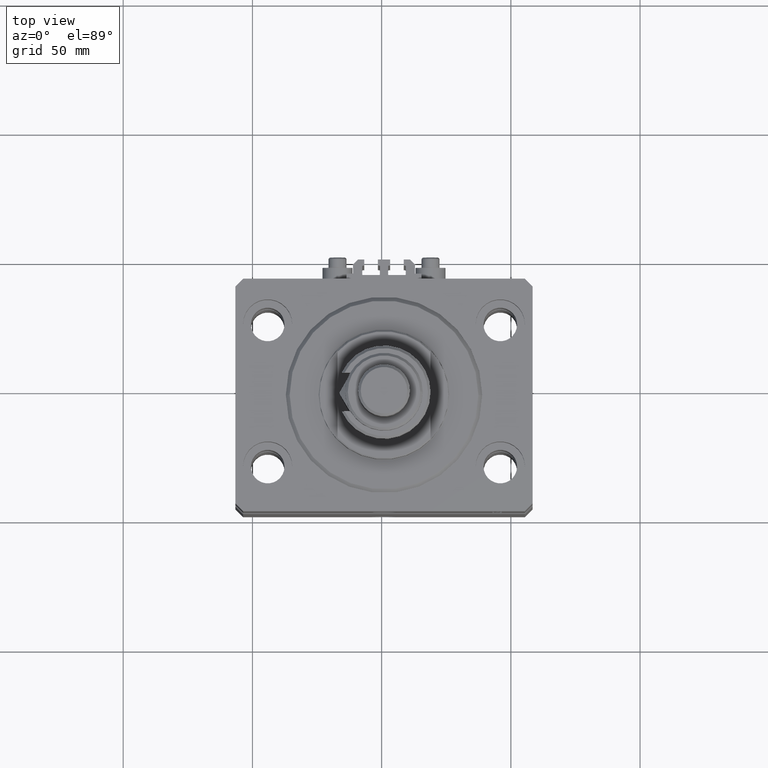
[diagram: clean part render]
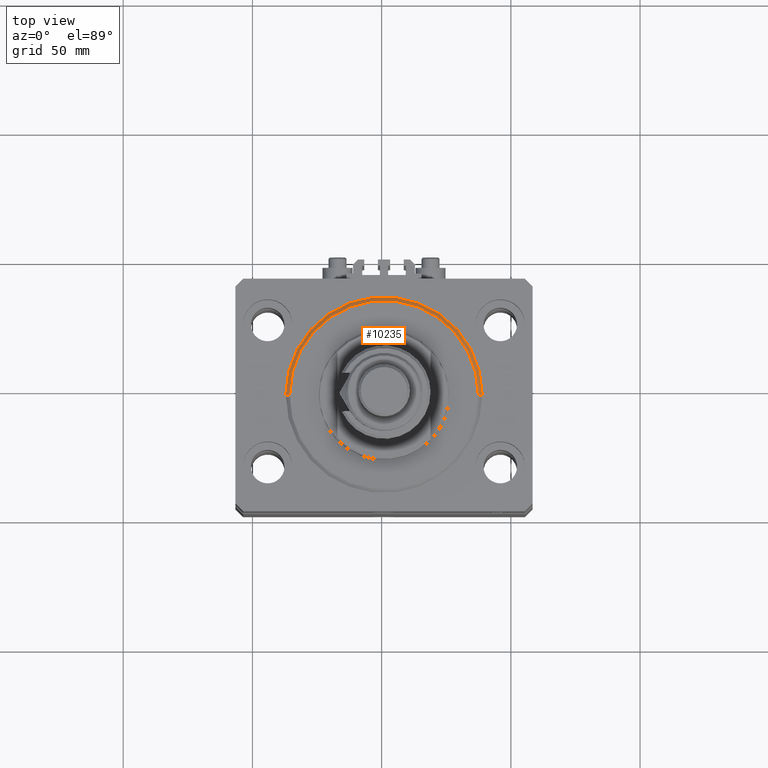
[diagram: same view with one face highlighted and labeled with its STEP entity id]
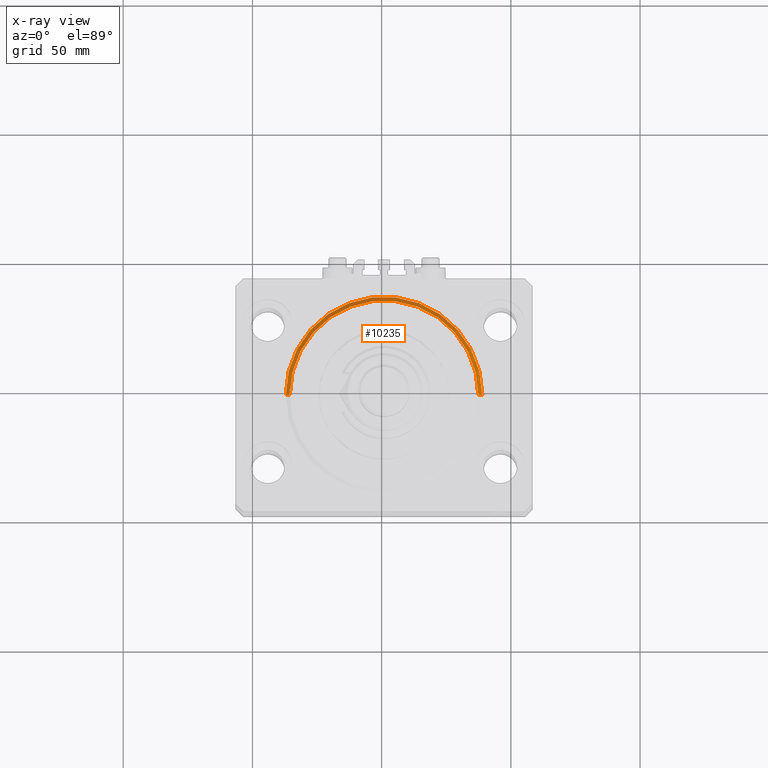
[diagram: x-ray of the same camera — body ghosted, the highlighted face saturated]
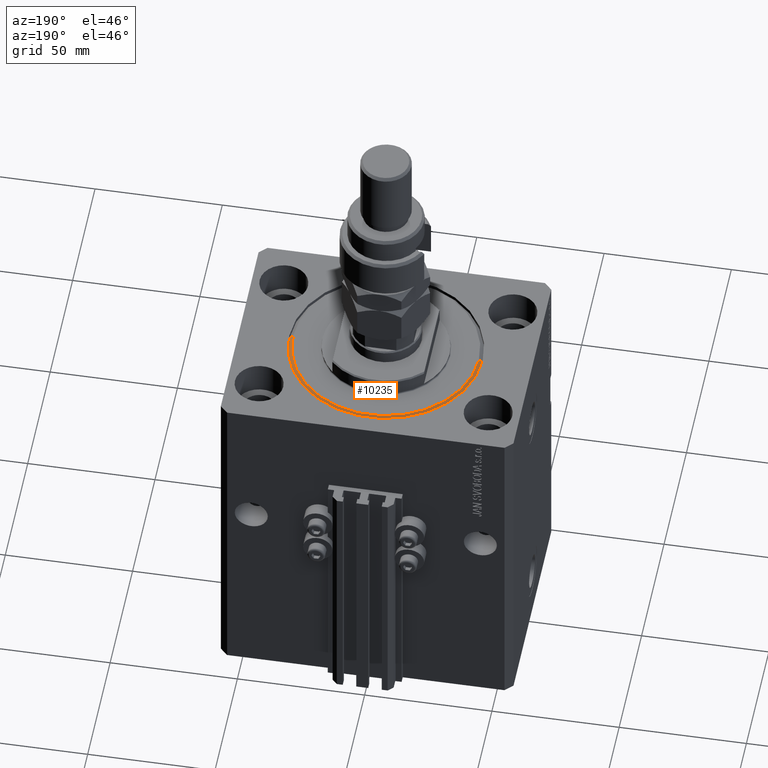
[diagram: same view with one face highlighted and labeled with its STEP entity id]
A machine part, top view. The second image highlights one B-rep face of the part: STEP entity #10235.
The next image is the same camera in x-ray: the body ghosted, the highlighted face saturated — about 0% of this face is hidden behind the body in this view.
A second angle (auxiliary view) of the same face is appended — the face is thin or edge-on in the first view.
In plain terms, the highlighted conical surface has half-angle 45 deg.
Its self-contained STEP definition (entity closure, byte-faithful):
#2008 = CARTESIAN_POINT ( 'NONE',  ( 38.00000000000000000, 4.653657836759941941E-15, 1.499999999999987566 ) ) ;
#2248 = ORIENTED_EDGE ( 'NONE', *, *, #2529, .F. ) ;
#2529 = EDGE_CURVE ( 'NONE', #28186, #34480, #11075, .T. ) ;
#2705 = ORIENTED_EDGE ( 'NONE', *, *, #29988, .F. ) ;
#5597 = CARTESIAN_POINT ( 'NONE',  ( -38.00000000000000000, 0.000000000000000000, 1.499999999999987566 ) ) ;
#5993 = AXIS2_PLACEMENT_3D ( 'NONE', #18045, #6339, #13636 ) ;
#6339 = DIRECTION ( 'NONE',  ( -0.000000000000000000, -0.000000000000000000, 1.000000000000000000 ) ) ;
#7639 = VERTEX_POINT ( 'NONE', #20658 ) ;
#9739 = FACE_OUTER_BOUND ( 'NONE', #18764, .T. ) ;
#10235 = ADVANCED_FACE ( 'NONE', ( #9739 ), #22641, .T. ) ;
#10536 = ORIENTED_EDGE ( 'NONE', *, *, #33688, .F. ) ;
#10944 = DIRECTION ( 'NONE',  ( -0.000000000000000000, -0.000000000000000000, -1.000000000000000000 ) ) ;
#11075 = LINE ( 'NONE', #39431, #36570 ) ;
#13321 = CARTESIAN_POINT ( 'NONE',  ( -38.00000000000000000, 4.653657836759941152E-15, 1.499999999999987566 ) ) ;
#13636 = DIRECTION ( 'NONE',  ( 1.000000000000000000, 0.000000000000000000, 0.000000000000000000 ) ) ;
#14527 = VECTOR ( 'NONE', #29207, 1000.000000000000114 ) ;
#16799 = EDGE_CURVE ( 'NONE', #7639, #25324, #33108, .T. ) ;
#18045 = CARTESIAN_POINT ( 'NONE',  ( 0.000000000000000000, 0.000000000000000000, 1.499999999999987566 ) ) ;
#18764 = EDGE_LOOP ( 'NONE', ( #2705, #49368, #10536, #2248 ) ) ;
#19619 = CARTESIAN_POINT ( 'NONE',  ( 0.000000000000000000, 0.000000000000000000, 1.499999999999987566 ) ) ;
#19744 = CARTESIAN_POINT ( 'NONE',  ( 36.50000000000000000, 0.000000000000000000, 0.000000000000000000 ) ) ;
#20658 = CARTESIAN_POINT ( 'NONE',  ( -36.50000000000000000, 4.561809326823889791E-15, 0.000000000000000000 ) ) ;
#22641 = CONICAL_SURFACE ( 'NONE', #5993, 38.00000000000000000, 0.7853981633974529419 ) ;
#25324 = VERTEX_POINT ( 'NONE', #5597 ) ;
#26577 = AXIS2_PLACEMENT_3D ( 'NONE', #19619, #30817, #38884 ) ;
#28186 = VERTEX_POINT ( 'NONE', #19744 ) ;
#28935 = CIRCLE ( 'NONE', #50555, 36.50000000000000000 ) ;
#29207 = DIRECTION ( 'NONE',  ( -0.7071067811865507924, 8.659560562354972301E-17, 0.7071067811865441310 ) ) ;
#29988 = EDGE_CURVE ( 'NONE', #7639, #28186, #28935, .T. ) ;
#30817 = DIRECTION ( 'NONE',  ( -0.000000000000000000, -0.000000000000000000, 1.000000000000000000 ) ) ;
#31109 = DIRECTION ( 'NONE',  ( 0.7071067811865507924, 0.000000000000000000, 0.7071067811865441310 ) ) ;
#33108 = LINE ( 'NONE', #13321, #14527 ) ;
#33688 = EDGE_CURVE ( 'NONE', #34480, #25324, #35752, .T. ) ;
#34480 = VERTEX_POINT ( 'NONE', #2008 ) ;
#34632 = CARTESIAN_POINT ( 'NONE',  ( 0.000000000000000000, 0.000000000000000000, 0.000000000000000000 ) ) ;
#35752 = CIRCLE ( 'NONE', #26577, 38.00000000000000000 ) ;
#36570 = VECTOR ( 'NONE', #31109, 1000.000000000000114 ) ;
#38884 = DIRECTION ( 'NONE',  ( 1.000000000000000000, 0.000000000000000000, 0.000000000000000000 ) ) ;
#39431 = CARTESIAN_POINT ( 'NONE',  ( 38.00000000000000000, 0.000000000000000000, 1.499999999999987566 ) ) ;
#41917 = DIRECTION ( 'NONE',  ( 1.000000000000000000, 0.000000000000000000, 0.000000000000000000 ) ) ;
#49368 = ORIENTED_EDGE ( 'NONE', *, *, #16799, .T. ) ;
#50555 = AXIS2_PLACEMENT_3D ( 'NONE', #34632, #10944, #41917 ) ;